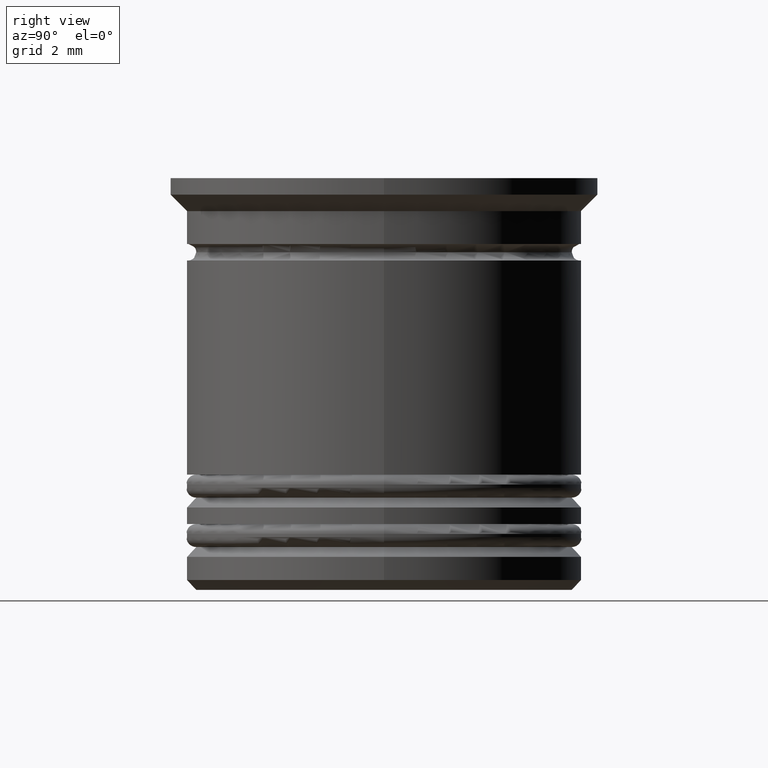
[diagram: clean part render]
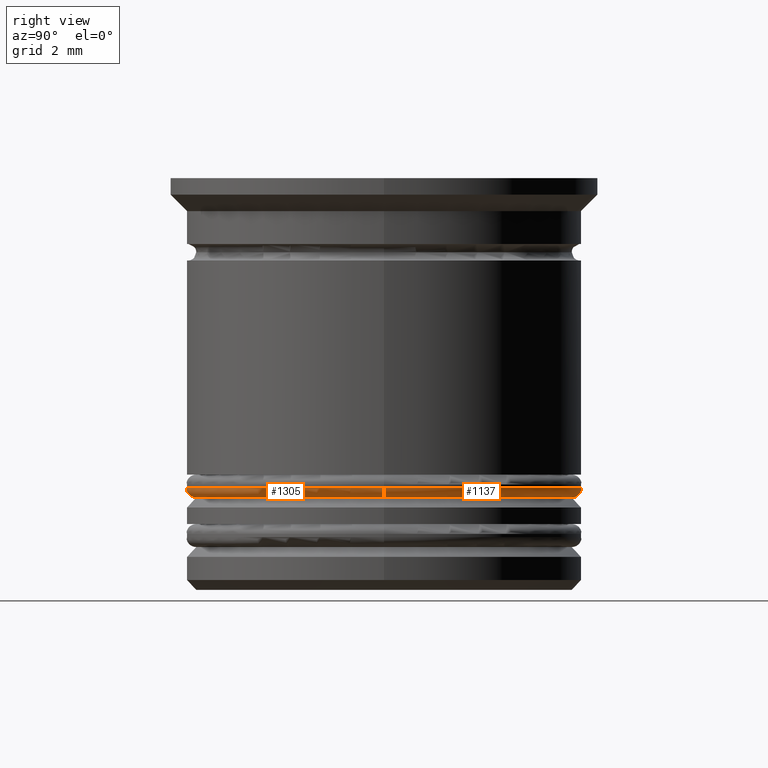
[diagram: same view with one multi-face feature highlighted, each face labeled with its STEP entity id]
A machine part, right view. The highlighted faces form ONE feature: a constant-radius fillet chain: 2 tangent blend faces with common blend radius 0.3 mm. The faces share edges in the B-rep.
Their STEP definitions:
[1] entity #1305 (Torus):
#66 = CARTESIAN_POINT ( 'NONE',  ( 5.700000000000002842, 0.000000000000000000, -9.400000000000005684 ) ) ;
#74 = EDGE_CURVE ( 'NONE', #827, #1399, #622, .T. ) ;
#95 = CARTESIAN_POINT ( 'NONE',  ( -5.700000000000002842, 6.980486755139916067E-16, -9.400000000000005684 ) ) ;
#125 = TOROIDAL_SURFACE ( 'NONE', #1420, 5.700000000000002842, 0.2999999999999999889 ) ;
#171 = DIRECTION ( 'NONE',  ( 1.000000000000000000, 0.000000000000000000, 0.000000000000000000 ) ) ;
#188 = ORIENTED_EDGE ( 'NONE', *, *, #1718, .F. ) ;
#286 = DIRECTION ( 'NONE',  ( 0.000000000000000000, 0.000000000000000000, 1.000000000000000000 ) ) ;
#296 = CARTESIAN_POINT ( 'NONE',  ( -6.000000000000002665, 7.347880794884122694E-16, -9.400000000000005684 ) ) ;
#303 = FACE_OUTER_BOUND ( 'NONE', #1345, .T. ) ;
#406 = EDGE_CURVE ( 'NONE', #1401, #1399, #1246, .T. ) ;
#453 = DIRECTION ( 'NONE',  ( 1.000000000000000000, 0.000000000000000000, 0.000000000000000000 ) ) ;
#622 = CIRCLE ( 'NONE', #1037, 6.000000000000002665 ) ;
#654 = CARTESIAN_POINT ( 'NONE',  ( 0.000000000000000000, 0.000000000000000000, -9.700000000000006395 ) ) ;
#709 = DIRECTION ( 'NONE',  ( 1.224646799147353207E-16, 1.000000000000000000, -0.000000000000000000 ) ) ;
#775 = CARTESIAN_POINT ( 'NONE',  ( 6.000000000000002665, 0.000000000000000000, -9.400000000000005684 ) ) ;
#827 = VERTEX_POINT ( 'NONE', #296 ) ;
#906 = DIRECTION ( 'NONE',  ( 0.000000000000000000, 0.000000000000000000, 1.000000000000000000 ) ) ;
#996 = DIRECTION ( 'NONE',  ( 0.000000000000000000, -1.000000000000000000, 0.000000000000000000 ) ) ;
#1037 = AXIS2_PLACEMENT_3D ( 'NONE', #1964, #286, #1038 ) ;
#1038 = DIRECTION ( 'NONE',  ( 1.000000000000000000, 0.000000000000000000, 0.000000000000000000 ) ) ;
#1170 = EDGE_CURVE ( 'NONE', #1991, #827, #1174, .T. ) ;
#1174 = CIRCLE ( 'NONE', #1583, 0.2999999999999999334 ) ;
#1233 = CIRCLE ( 'NONE', #1840, 5.700000000000002842 ) ;
#1245 = ORIENTED_EDGE ( 'NONE', *, *, #406, .T. ) ;
#1246 = CIRCLE ( 'NONE', #1934, 0.2999999999999999334 ) ;
#1305 = ADVANCED_FACE ( 'NONE', ( #303 ), #125, .T. ) ;
#1340 = ORIENTED_EDGE ( 'NONE', *, *, #74, .F. ) ;
#1345 = EDGE_LOOP ( 'NONE', ( #1694, #188, #1245, #1340 ) ) ;
#1399 = VERTEX_POINT ( 'NONE', #775 ) ;
#1401 = VERTEX_POINT ( 'NONE', #1477 ) ;
#1420 = AXIS2_PLACEMENT_3D ( 'NONE', #1816, #906, #453 ) ;
#1433 = DIRECTION ( 'NONE',  ( 0.000000000000000000, 0.000000000000000000, -1.000000000000000000 ) ) ;
#1477 = CARTESIAN_POINT ( 'NONE',  ( 5.700000000000002842, 0.000000000000000000, -9.700000000000006395 ) ) ;
#1569 = DIRECTION ( 'NONE',  ( -0.000000000000000000, -0.000000000000000000, -1.000000000000000000 ) ) ;
#1583 = AXIS2_PLACEMENT_3D ( 'NONE', #95, #709, #1592 ) ;
#1592 = DIRECTION ( 'NONE',  ( -1.000000000000000000, 1.224646799147353207E-16, 0.000000000000000000 ) ) ;
#1694 = ORIENTED_EDGE ( 'NONE', *, *, #1170, .F. ) ;
#1718 = EDGE_CURVE ( 'NONE', #1401, #1991, #1233, .T. ) ;
#1816 = CARTESIAN_POINT ( 'NONE',  ( 0.000000000000000000, 0.000000000000000000, -9.400000000000005684 ) ) ;
#1840 = AXIS2_PLACEMENT_3D ( 'NONE', #654, #1569, #171 ) ;
#1934 = AXIS2_PLACEMENT_3D ( 'NONE', #66, #996, #1433 ) ;
#1949 = CARTESIAN_POINT ( 'NONE',  ( -5.700000000000002842, 7.164183775012019380E-16, -9.700000000000006395 ) ) ;
#1964 = CARTESIAN_POINT ( 'NONE',  ( 0.000000000000000000, 0.000000000000000000, -9.400000000000005684 ) ) ;
#1991 = VERTEX_POINT ( 'NONE', #1949 ) ;
[2] entity #1137 (Torus):
#17 = TOROIDAL_SURFACE ( 'NONE', #382, 5.700000000000002842, 0.2999999999999999889 ) ;
#41 = CIRCLE ( 'NONE', #1279, 6.000000000000002665 ) ;
#60 = FACE_OUTER_BOUND ( 'NONE', #1521, .T. ) ;
#66 = CARTESIAN_POINT ( 'NONE',  ( 5.700000000000002842, 0.000000000000000000, -9.400000000000005684 ) ) ;
#95 = CARTESIAN_POINT ( 'NONE',  ( -5.700000000000002842, 6.980486755139916067E-16, -9.400000000000005684 ) ) ;
#237 = ORIENTED_EDGE ( 'NONE', *, *, #457, .F. ) ;
#296 = CARTESIAN_POINT ( 'NONE',  ( -6.000000000000002665, 7.347880794884122694E-16, -9.400000000000005684 ) ) ;
#382 = AXIS2_PLACEMENT_3D ( 'NONE', #1767, #520, #1455 ) ;
#406 = EDGE_CURVE ( 'NONE', #1401, #1399, #1246, .T. ) ;
#457 = EDGE_CURVE ( 'NONE', #1399, #827, #41, .T. ) ;
#520 = DIRECTION ( 'NONE',  ( 0.000000000000000000, 0.000000000000000000, 1.000000000000000000 ) ) ;
#527 = CARTESIAN_POINT ( 'NONE',  ( 0.000000000000000000, 0.000000000000000000, -9.400000000000005684 ) ) ;
#627 = CARTESIAN_POINT ( 'NONE',  ( 0.000000000000000000, 0.000000000000000000, -9.700000000000006395 ) ) ;
#709 = DIRECTION ( 'NONE',  ( 1.224646799147353207E-16, 1.000000000000000000, -0.000000000000000000 ) ) ;
#775 = CARTESIAN_POINT ( 'NONE',  ( 6.000000000000002665, 0.000000000000000000, -9.400000000000005684 ) ) ;
#827 = VERTEX_POINT ( 'NONE', #296 ) ;
#996 = DIRECTION ( 'NONE',  ( 0.000000000000000000, -1.000000000000000000, 0.000000000000000000 ) ) ;
#1094 = ORIENTED_EDGE ( 'NONE', *, *, #1658, .F. ) ;
#1137 = ADVANCED_FACE ( 'NONE', ( #60 ), #17, .T. ) ;
#1139 = DIRECTION ( 'NONE',  ( 0.000000000000000000, 0.000000000000000000, 1.000000000000000000 ) ) ;
#1170 = EDGE_CURVE ( 'NONE', #1991, #827, #1174, .T. ) ;
#1174 = CIRCLE ( 'NONE', #1583, 0.2999999999999999334 ) ;
#1246 = CIRCLE ( 'NONE', #1934, 0.2999999999999999334 ) ;
#1248 = DIRECTION ( 'NONE',  ( -0.000000000000000000, -0.000000000000000000, -1.000000000000000000 ) ) ;
#1279 = AXIS2_PLACEMENT_3D ( 'NONE', #527, #1139, #1288 ) ;
#1288 = DIRECTION ( 'NONE',  ( 1.000000000000000000, 0.000000000000000000, 0.000000000000000000 ) ) ;
#1299 = ORIENTED_EDGE ( 'NONE', *, *, #1170, .T. ) ;
#1399 = VERTEX_POINT ( 'NONE', #775 ) ;
#1401 = VERTEX_POINT ( 'NONE', #1477 ) ;
#1413 = AXIS2_PLACEMENT_3D ( 'NONE', #627, #1248, #1536 ) ;
#1433 = DIRECTION ( 'NONE',  ( 0.000000000000000000, 0.000000000000000000, -1.000000000000000000 ) ) ;
#1455 = DIRECTION ( 'NONE',  ( 1.000000000000000000, 0.000000000000000000, 0.000000000000000000 ) ) ;
#1477 = CARTESIAN_POINT ( 'NONE',  ( 5.700000000000002842, 0.000000000000000000, -9.700000000000006395 ) ) ;
#1521 = EDGE_LOOP ( 'NONE', ( #1094, #1299, #237, #1820 ) ) ;
#1536 = DIRECTION ( 'NONE',  ( 1.000000000000000000, 0.000000000000000000, 0.000000000000000000 ) ) ;
#1578 = CIRCLE ( 'NONE', #1413, 5.700000000000002842 ) ;
#1583 = AXIS2_PLACEMENT_3D ( 'NONE', #95, #709, #1592 ) ;
#1592 = DIRECTION ( 'NONE',  ( -1.000000000000000000, 1.224646799147353207E-16, 0.000000000000000000 ) ) ;
#1658 = EDGE_CURVE ( 'NONE', #1991, #1401, #1578, .T. ) ;
#1767 = CARTESIAN_POINT ( 'NONE',  ( 0.000000000000000000, 0.000000000000000000, -9.400000000000005684 ) ) ;
#1820 = ORIENTED_EDGE ( 'NONE', *, *, #406, .F. ) ;
#1934 = AXIS2_PLACEMENT_3D ( 'NONE', #66, #996, #1433 ) ;
#1949 = CARTESIAN_POINT ( 'NONE',  ( -5.700000000000002842, 7.164183775012019380E-16, -9.700000000000006395 ) ) ;
#1991 = VERTEX_POINT ( 'NONE', #1949 ) ;